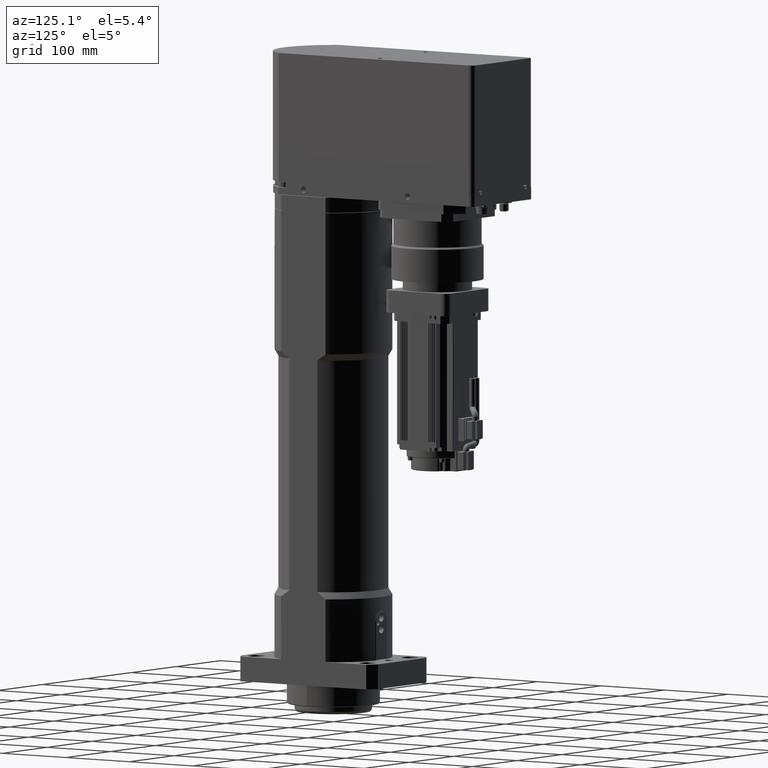
[diagram: clean part render]
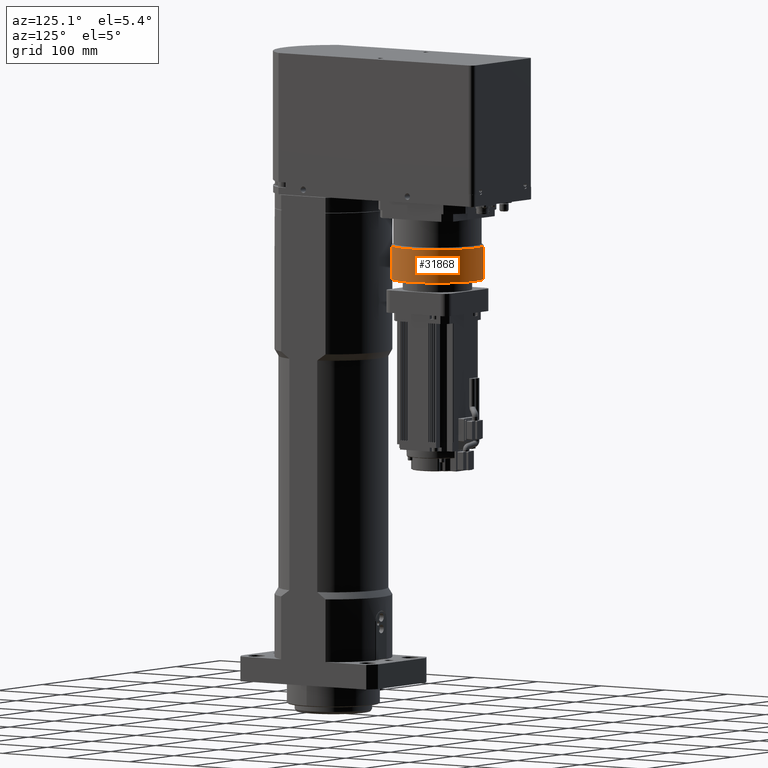
[diagram: same view with one face highlighted and labeled with its STEP entity id]
A machine part, auxiliary view. The second image highlights one B-rep face of the part: STEP entity #31868.
In plain terms, the highlighted cylindrical surface (bore or boss wall) has radius 59.85 mm, axis along (0, 0, 1).
Its self-contained STEP definition (entity closure, byte-faithful):
#3756=LINE('',#58076,#6384);
#6384=VECTOR('',#41494,59.85);
#7177=CYLINDRICAL_SURFACE('',#34444,59.85);
#8669=FACE_OUTER_BOUND('',#10586,.T.);
#10586=EDGE_LOOP('',(#27201,#27202,#27203,#27204));
#12486=CIRCLE('',#34443,59.85);
#12487=CIRCLE('',#34445,59.85);
#15005=VERTEX_POINT('',#58071);
#15006=VERTEX_POINT('',#58074);
#19150=EDGE_CURVE('',#15005,#15005,#12486,.T.);
#19151=EDGE_CURVE('',#15006,#15006,#12487,.T.);
#19152=EDGE_CURVE('',#15006,#15005,#3756,.T.);
#27201=ORIENTED_EDGE('',*,*,#19151,.F.);
#27202=ORIENTED_EDGE('',*,*,#19152,.T.);
#27203=ORIENTED_EDGE('',*,*,#19150,.F.);
#27204=ORIENTED_EDGE('',*,*,#19152,.F.);
#31868=ADVANCED_FACE('',(#8669),#7177,.T.);
#34443=AXIS2_PLACEMENT_3D('',#58072,#41488,#41489);
#34444=AXIS2_PLACEMENT_3D('',#58073,#41490,#41491);
#34445=AXIS2_PLACEMENT_3D('',#58075,#41492,#41493);
#41488=DIRECTION('center_axis',(-4.40599034905589E-33,-1.06370540703911E-49,
-1.));
#41489=DIRECTION('ref_axis',(1.66533453693774E-16,1.,-8.40115330473624E-49));
#41490=DIRECTION('center_axis',(4.40599034905589E-33,1.06370540703911E-49,
1.));
#41491=DIRECTION('ref_axis',(1.66533453693774E-16,1.,-8.40115330473624E-49));
#41492=DIRECTION('center_axis',(4.40599034905589E-33,1.06370540703911E-49,
1.));
#41493=DIRECTION('ref_axis',(1.66533453693774E-16,1.,-8.40115330473624E-49));
#41494=DIRECTION('',(-4.40599034905589E-33,-1.06370540703911E-49,-1.));
#58071=CARTESIAN_POINT('',(2.80668606837077E-14,104.150000000001,530.5));
#58072=CARTESIAN_POINT('Origin',(3.07043767943831E-14,164.000000000001,
530.5));
#58073=CARTESIAN_POINT('Origin',(3.07043767943831E-14,164.000000000001,
530.5));
#58074=CARTESIAN_POINT('',(2.80668606837077E-14,104.150000000001,573.5));
#58075=CARTESIAN_POINT('Origin',(3.07043767943831E-14,164.000000000001,
573.5));
#58076=CARTESIAN_POINT('',(2.80668606837077E-14,104.150000000001,530.5));